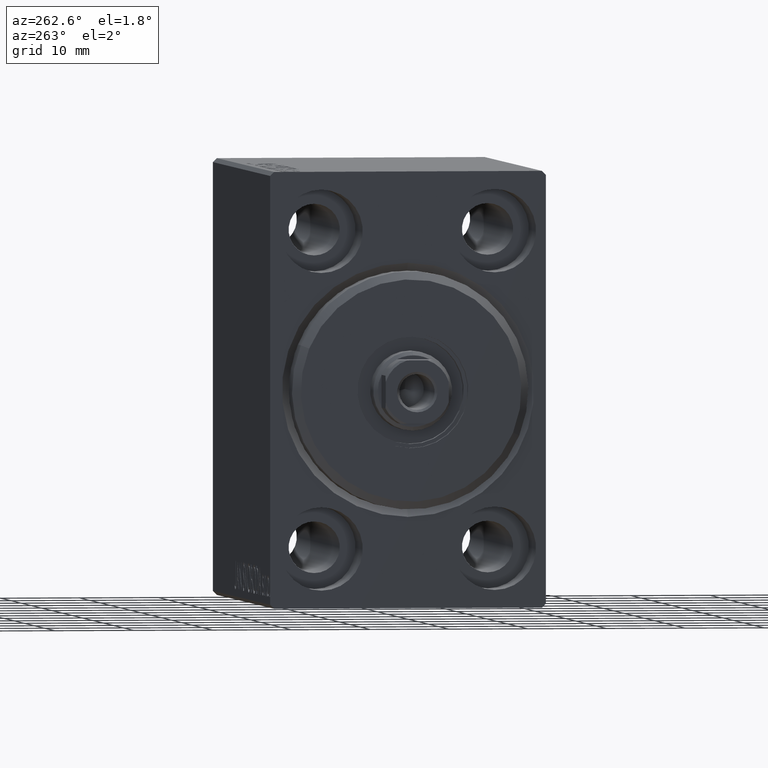
[diagram: clean part render]
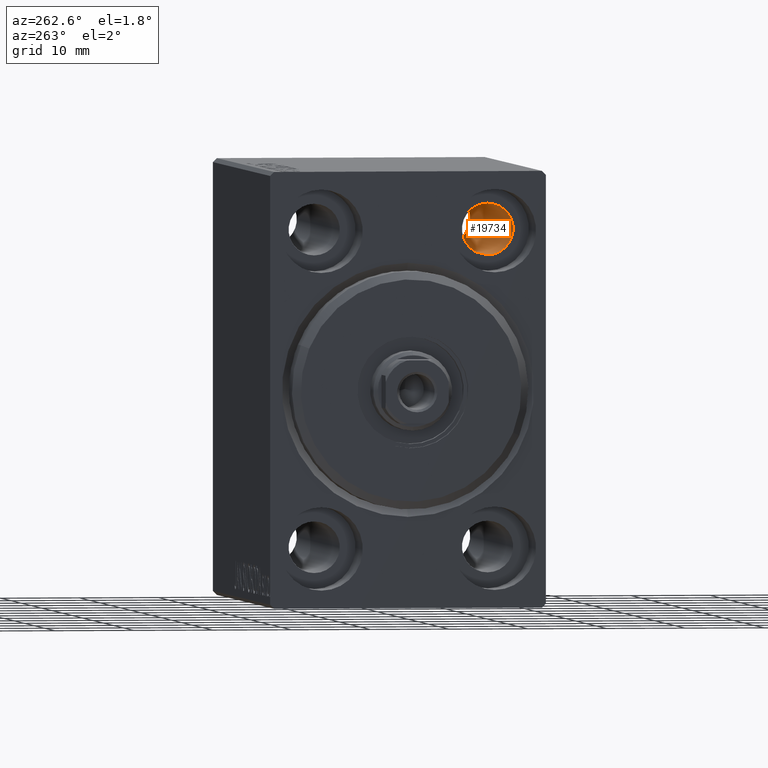
[diagram: same view with one face highlighted and labeled with its STEP entity id]
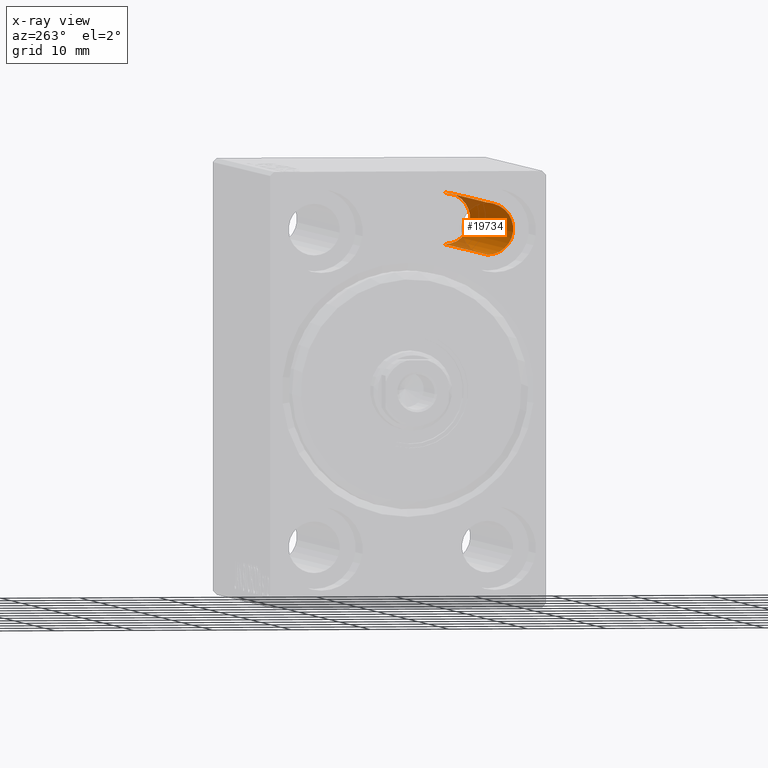
[diagram: x-ray of the same camera — body ghosted, the highlighted face saturated]
A machine part, auxiliary view. The second image highlights one B-rep face of the part: STEP entity #19734.
The next image is the same camera in x-ray: the body ghosted, the highlighted face saturated — about 14% of this face is hidden behind the body in this view.
In plain terms, the highlighted cylindrical surface (edge-blend (fillet) strip) has radius 3.25 mm, axis along (-1, -0, -0).
Its self-contained STEP definition (entity closure, byte-faithful):
#84 = CIRCLE ( 'NONE', #11434, 3.249999999999999556 ) ;
#359 = AXIS2_PLACEMENT_3D ( 'NONE', #30149, #41040, #43713 ) ;
#422 = EDGE_CURVE ( 'NONE', #24459, #5018, #35089, .T. ) ;
#1084 = CYLINDRICAL_SURFACE ( 'NONE', #17157, 3.249999999999999556 ) ;
#1646 = LINE ( 'NONE', #10783, #38785 ) ;
#2341 = CARTESIAN_POINT ( 'NONE',  ( 49.00000000000000000, -11.00000000000000355, 23.25000000000000000 ) ) ;
#4044 = DIRECTION ( 'NONE',  ( -1.000000000000000000, -0.000000000000000000, -0.000000000000000000 ) ) ;
#5018 = VERTEX_POINT ( 'NONE', #27665 ) ;
#8322 = CARTESIAN_POINT ( 'NONE',  ( 6.999999999999999112, -11.00000000000000355, 23.25000000000000000 ) ) ;
#9215 = ORIENTED_EDGE ( 'NONE', *, *, #16705, .T. ) ;
#9877 = VERTEX_POINT ( 'NONE', #2341 ) ;
#10645 = DIRECTION ( 'NONE',  ( -1.000000000000000000, -0.000000000000000000, -0.000000000000000000 ) ) ;
#10783 = CARTESIAN_POINT ( 'NONE',  ( 56.00000000000000000, -11.00000000000000355, 23.25000000000000000 ) ) ;
#11434 = AXIS2_PLACEMENT_3D ( 'NONE', #24172, #27736, #25490 ) ;
#13836 = CIRCLE ( 'NONE', #359, 3.249999999999999556 ) ;
#14849 = DIRECTION ( 'NONE',  ( 0.000000000000000000, 0.000000000000000000, 1.000000000000000000 ) ) ;
#15837 = CARTESIAN_POINT ( 'NONE',  ( 49.00000000000000000, -11.00000000000000355, 16.75000000000000000 ) ) ;
#16672 = VECTOR ( 'NONE', #4044, 1000.000000000000000 ) ;
#16705 = EDGE_CURVE ( 'NONE', #5018, #39890, #84, .T. ) ;
#17157 = AXIS2_PLACEMENT_3D ( 'NONE', #31693, #10645, #14849 ) ;
#17869 = DIRECTION ( 'NONE',  ( -1.000000000000000000, -0.000000000000000000, -0.000000000000000000 ) ) ;
#19559 = ORIENTED_EDGE ( 'NONE', *, *, #32321, .F. ) ;
#19734 = ADVANCED_FACE ( 'NONE', ( #21256 ), #1084, .F. ) ;
#21256 = FACE_OUTER_BOUND ( 'NONE', #21949, .T. ) ;
#21949 = EDGE_LOOP ( 'NONE', ( #19559, #35466, #9215, #33812 ) ) ;
#24172 = CARTESIAN_POINT ( 'NONE',  ( 6.999999999999999112, -11.00000000000000355, 20.00000000000000000 ) ) ;
#24459 = VERTEX_POINT ( 'NONE', #15837 ) ;
#25490 = DIRECTION ( 'NONE',  ( 0.000000000000000000, 0.000000000000000000, 1.000000000000000000 ) ) ;
#27665 = CARTESIAN_POINT ( 'NONE',  ( 6.999999999999999112, -11.00000000000000355, 16.75000000000000000 ) ) ;
#27736 = DIRECTION ( 'NONE',  ( -1.000000000000000000, 0.000000000000000000, 0.000000000000000000 ) ) ;
#30149 = CARTESIAN_POINT ( 'NONE',  ( 49.00000000000000000, -11.00000000000000355, 20.00000000000000000 ) ) ;
#31693 = CARTESIAN_POINT ( 'NONE',  ( 56.00000000000000000, -11.00000000000000355, 20.00000000000000000 ) ) ;
#32321 = EDGE_CURVE ( 'NONE', #24459, #9877, #13836, .T. ) ;
#33812 = ORIENTED_EDGE ( 'NONE', *, *, #39837, .F. ) ;
#34436 = CARTESIAN_POINT ( 'NONE',  ( 56.00000000000000000, -11.00000000000000355, 16.75000000000000000 ) ) ;
#35089 = LINE ( 'NONE', #34436, #16672 ) ;
#35466 = ORIENTED_EDGE ( 'NONE', *, *, #422, .T. ) ;
#38785 = VECTOR ( 'NONE', #17869, 1000.000000000000000 ) ;
#39837 = EDGE_CURVE ( 'NONE', #9877, #39890, #1646, .T. ) ;
#39890 = VERTEX_POINT ( 'NONE', #8322 ) ;
#41040 = DIRECTION ( 'NONE',  ( -1.000000000000000000, -0.000000000000000000, -0.000000000000000000 ) ) ;
#43713 = DIRECTION ( 'NONE',  ( 0.000000000000000000, 0.000000000000000000, -1.000000000000000000 ) ) ;